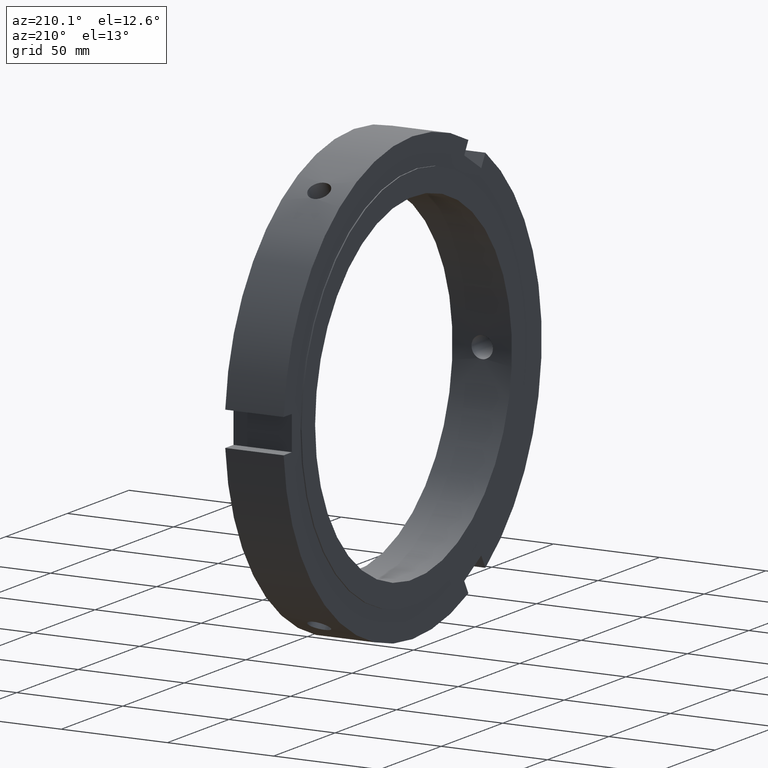
[diagram: clean part render]
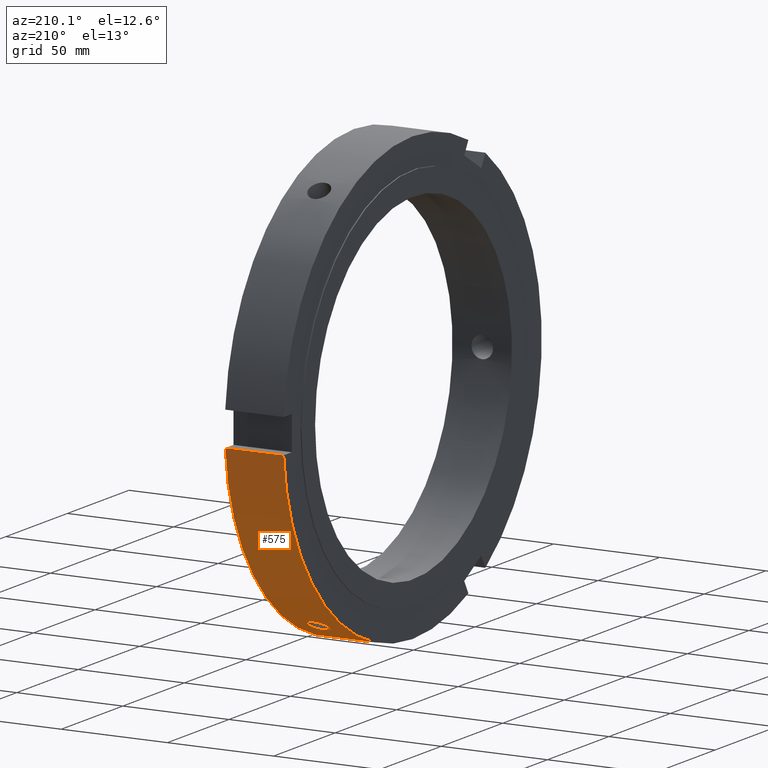
[diagram: same view with one face highlighted and labeled with its STEP entity id]
A machine part, auxiliary view. The second image highlights one B-rep face of the part: STEP entity #575.
In plain terms, the highlighted cylindrical surface (partial cylindrical patch) has radius 105 mm, axis along (1, 0, 0).
Its self-contained STEP definition (entity closure, byte-faithful):
#113=CARTESIAN_POINT('',(0.499999999999972,-45.419194030715467,-94.668351700028126));
#114=VERTEX_POINT('',#113);
#123=CARTESIAN_POINT('',(27.999999999999979,-45.419194030715467,-94.668351700028126));
#124=VERTEX_POINT('',#123);
#125=CARTESIAN_POINT('',(27.999999999999979,-45.419194030715460,-94.668351700028126));
#126=DIRECTION('',(-1.0,0.0,0.0));
#127=VECTOR('',#126,27.500000000000007);
#128=LINE('',#125,#127);
#129=EDGE_CURVE('',#124,#114,#128,.T.);
#365=CARTESIAN_POINT('',(13.999999999999979,48.063145994183422,-93.353810833526282));
#366=VERTEX_POINT('',#365);
#367=CARTESIAN_POINT('',(13.999999999999977,48.063145994183422,-93.353810833526282));
#368=CARTESIAN_POINT('',(14.634571136471466,48.063145994183422,-93.353810833526282));
#369=CARTESIAN_POINT('',(15.311372523950233,48.176167901671967,-93.295892013648810));
#370=CARTESIAN_POINT('',(16.556298304530198,48.634259359032228,-93.057914423461284));
#371=CARTESIAN_POINT('',(17.124431001535736,48.979159072769619,-92.877572284306140));
#372=CARTESIAN_POINT('',(18.021590047831658,49.771395009067334,-92.455447084963794));
#373=CARTESIAN_POINT('',(18.410453091665836,50.271542769711324,-92.185462949149155));
#374=CARTESIAN_POINT('',(18.926160779767752,51.361146366366199,-91.582859944023696));
#375=CARTESIAN_POINT('',(19.052999999999980,51.950445374912597,-91.249952908094656));
#376=CARTESIAN_POINT('',(19.052999999999972,53.049554625087382,-90.615381886637451));
#377=CARTESIAN_POINT('',(18.926160779767738,53.632510079573699,-90.271487492775776));
#378=CARTESIAN_POINT('',(18.410453091665808,54.699181388736633,-89.629164600580481));
#379=CARTESIAN_POINT('',(18.021590047831662,55.183068389292913,-89.331016002124244));
#380=CARTESIAN_POINT('',(17.124431001535729,55.944757503649789,-88.855982155170636));
#381=CARTESIAN_POINT('',(16.556298304530188,56.273388234399661,-88.647461310893647));
#382=CARTESIAN_POINT('',(15.311372523950229,56.708528601713574,-88.369731266656800));
#383=CARTESIAN_POINT('',(14.634571136471465,56.815198724828953,-88.300810833526256));
#384=CARTESIAN_POINT('',(13.365428863528495,56.815198724828953,-88.300810833526256));
#385=CARTESIAN_POINT('',(12.688627476049730,56.708528601713574,-88.369731266656800));
#386=CARTESIAN_POINT('',(11.443701695469773,56.273388234399661,-88.647461310893647));
#387=CARTESIAN_POINT('',(10.875568998464228,55.944757503649789,-88.855982155170636));
#388=CARTESIAN_POINT('',(9.978409952168297,55.183068389292913,-89.331016002124244));
#389=CARTESIAN_POINT('',(9.589546908334151,54.699181388736633,-89.629164600580481));
#390=CARTESIAN_POINT('',(9.073839220232221,53.632510079573692,-90.271487492775776));
#391=CARTESIAN_POINT('',(8.946999999999983,53.049554625087382,-90.615381886637465));
#392=CARTESIAN_POINT('',(8.946999999999976,51.950445374912597,-91.249952908094656));
#393=CARTESIAN_POINT('',(9.073839220232213,51.361146366366171,-91.582859944023696));
#394=CARTESIAN_POINT('',(9.589546908334130,50.271542769711310,-92.185462949149155));
#395=CARTESIAN_POINT('',(9.978409952168295,49.771395009067341,-92.455447084963794));
#396=CARTESIAN_POINT('',(10.875568998464221,48.979159072769619,-92.877572284306140));
#397=CARTESIAN_POINT('',(11.443701695469757,48.634259359032228,-93.057914423461284));
#398=CARTESIAN_POINT('',(12.688627476049723,48.176167901671967,-93.295892013648810));
#399=CARTESIAN_POINT('',(13.365428863528487,48.063145994183422,-93.353810833526282));
#400=CARTESIAN_POINT('',(13.999999999999977,48.063145994183422,-93.353810833526282));
#401=B_SPLINE_CURVE_WITH_KNOTS('',3,(#367,#368,#369,#370,#371,#372,#373,#374,#375,#376,#377,#378,#379,#380,#381,#382,#383,#384,#385,#386,#387,#388,#389,#390,#391,#392,#393,#394,#395,#396,#397,#398,#399,#400),.UNSPECIFIED.,.T.,.U.,(4,2,2,2,2,2,2,2,2,2,2,2,2,2,2,2,4),(0.0,0.190371340941447,0.380742681882893,0.571113988320058,0.761485294757222,0.951856601194387,1.142227907631553,1.332599248572998,1.522970589514444,1.713341930455890,1.903713271397335,2.094084577834500,2.284455884271666,2.474827190708830,2.665198497145995,2.855569838087441,3.045941179028888),.UNSPECIFIED.);
#402=EDGE_CURVE('',#366,#366,#401,.T.);
#456=CARTESIAN_POINT('',(27.999999999999979,104.694794521981850,-7.999999999999995));
#457=VERTEX_POINT('',#456);
#458=CARTESIAN_POINT('',(27.999999999999979,0.0,0.0));
#459=DIRECTION('',(1.0,0.0,0.0));
#460=DIRECTION('',(0.0,1.0,0.0));
#461=AXIS2_PLACEMENT_3D('',#458,#459,#460);
#462=CIRCLE('',#461,105.0);
#463=EDGE_CURVE('',#124,#457,#462,.T.);
#548=CARTESIAN_POINT('',(14.249999999999975,0.0,0.0));
#549=DIRECTION('',(1.0,0.0,0.0));
#550=DIRECTION('',(0.0,1.0,0.0));
#551=AXIS2_PLACEMENT_3D('',#548,#549,#550);
#552=CYLINDRICAL_SURFACE('',#551,105.0);
#553=ORIENTED_EDGE('',*,*,#129,.T.);
#554=CARTESIAN_POINT('',(0.499999999999972,104.694794521981850,-7.999999999999995));
#555=VERTEX_POINT('',#554);
#556=CARTESIAN_POINT('',(0.499999999999972,0.0,0.0));
#557=DIRECTION('',(1.0,0.0,0.0));
#558=DIRECTION('',(0.0,1.0,0.0));
#559=AXIS2_PLACEMENT_3D('',#556,#557,#558);
#560=CIRCLE('',#559,105.0);
#561=EDGE_CURVE('',#114,#555,#560,.T.);
#562=ORIENTED_EDGE('',*,*,#561,.T.);
#563=CARTESIAN_POINT('',(0.499999999999972,104.694794521981850,-7.999999999999995));
#564=DIRECTION('',(1.0,0.0,0.0));
#565=VECTOR('',#564,27.500000000000007);
#566=LINE('',#563,#565);
#567=EDGE_CURVE('',#555,#457,#566,.T.);
#568=ORIENTED_EDGE('',*,*,#567,.T.);
#569=ORIENTED_EDGE('',*,*,#463,.F.);
#570=EDGE_LOOP('',(#553,#562,#568,#569));
#571=FACE_OUTER_BOUND('',#570,.T.);
#572=ORIENTED_EDGE('',*,*,#402,.T.);
#573=EDGE_LOOP('',(#572));
#574=FACE_BOUND('',#573,.T.);
#575=ADVANCED_FACE('',(#571,#574),#552,.T.);